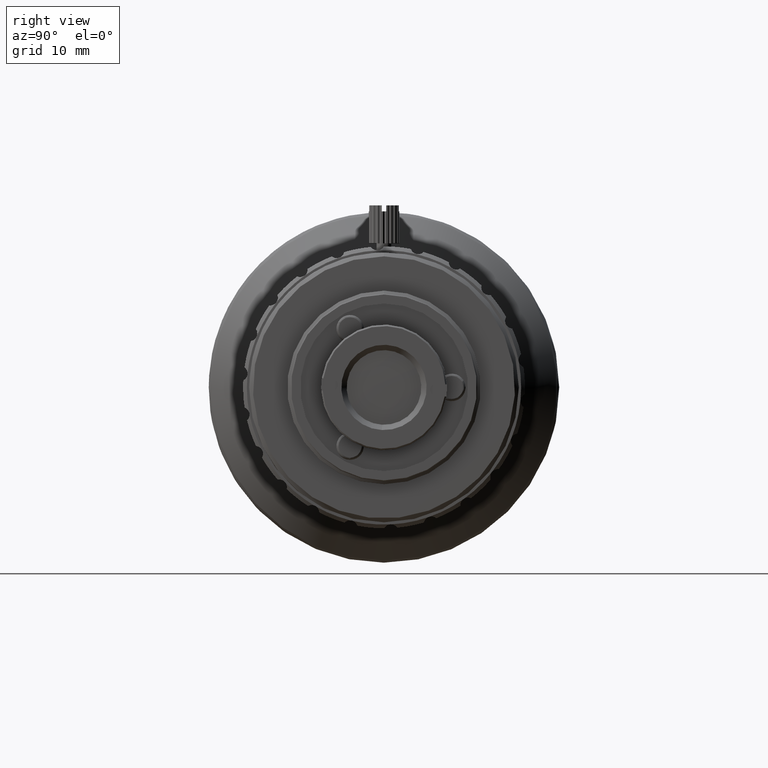
[diagram: clean part render]
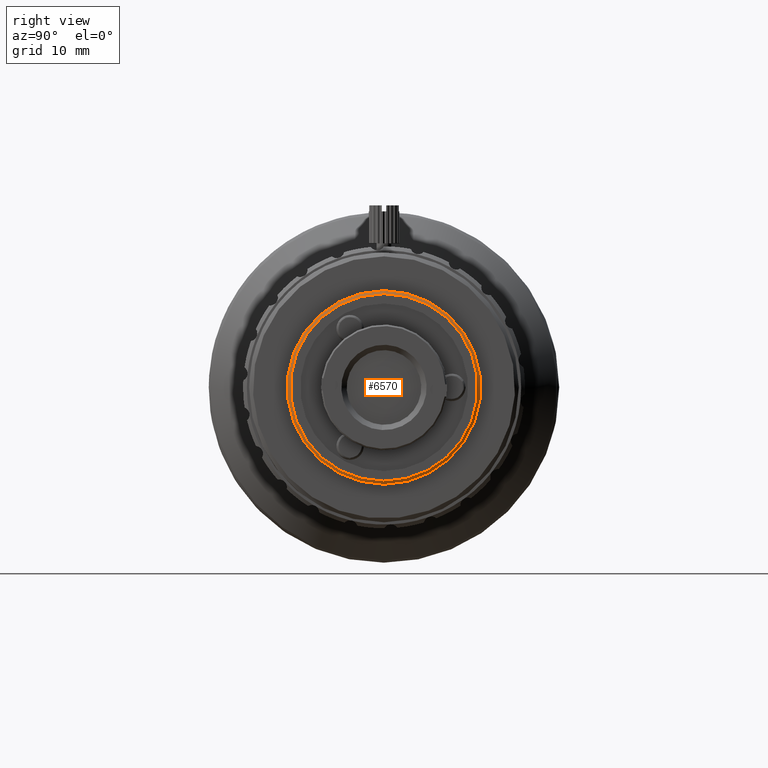
[diagram: same view with one face highlighted and labeled with its STEP entity id]
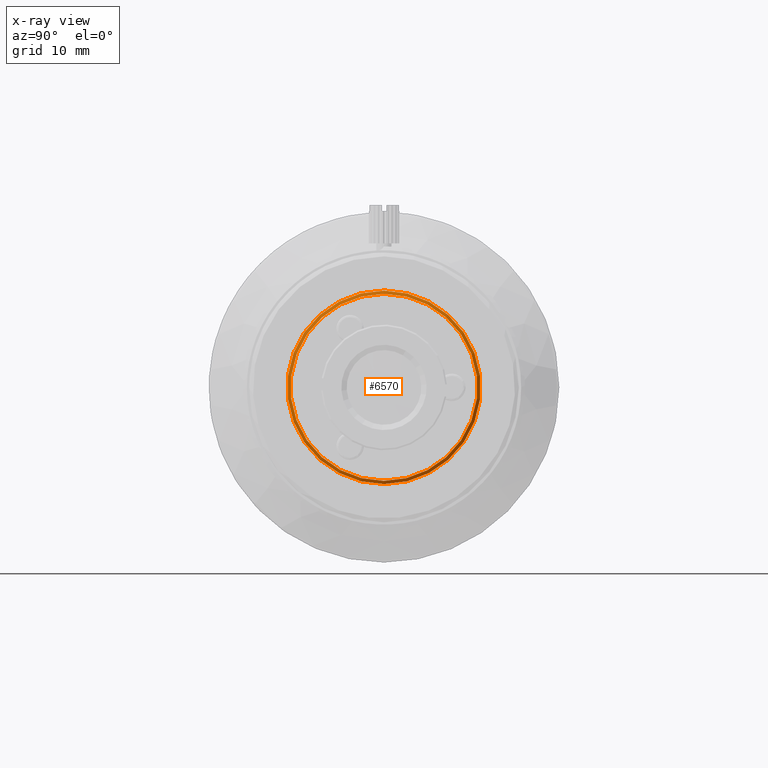
[diagram: x-ray of the same camera — body ghosted, the highlighted face saturated]
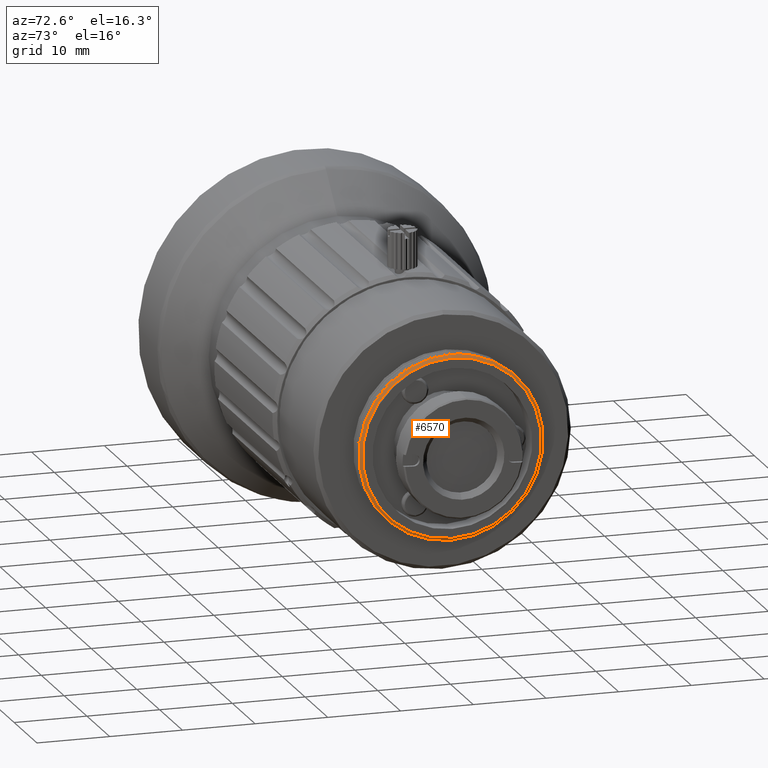
[diagram: same view with one face highlighted and labeled with its STEP entity id]
A machine part, right view. The second image highlights one B-rep face of the part: STEP entity #6570.
The next image is the same camera in x-ray: the body ghosted, the highlighted face saturated — about 0% of this face is hidden behind the body in this view.
A second angle (auxiliary view) of the same face is appended — the face is thin or edge-on in the first view.
In plain terms, the highlighted conical surface has half-angle 60 deg.
Its self-contained STEP definition (entity closure, byte-faithful):
#216 = DIRECTION ( 'NONE',  ( 0.000000000000000000, 0.000000000000000000, 1.000000000000000000 ) ) ;
#584 = DIRECTION ( 'NONE',  ( -1.000000000000000000, 0.000000000000000000, 0.000000000000000000 ) ) ;
#1240 = CARTESIAN_POINT ( 'NONE',  ( 24.12368414659907856, -1.808066145625021770, 80.94071780516576098 ) ) ;
#1366 = AXIS2_PLACEMENT_3D ( 'NONE', #13105, #6102, #216 ) ;
#1550 = DIRECTION ( 'NONE',  ( 1.000000000000000000, -0.000000000000000000, -0.000000000000000000 ) ) ;
#1711 = CARTESIAN_POINT ( 'NONE',  ( 24.12368414659907856, -1.808066145625021770, 68.24071780503437878 ) ) ;
#2703 = CIRCLE ( 'NONE', #11136, 12.27037487516190950 ) ;
#2765 = CARTESIAN_POINT ( 'NONE',  ( 24.37172832815084078, -1.808066145625021770, 68.24071780503437878 ) ) ;
#3312 = CONICAL_SURFACE ( 'NONE', #5721, 12.70000000013138397, 1.047197551196591858 ) ;
#3848 = EDGE_CURVE ( 'NONE', #13260, #13260, #2703, .T. ) ;
#4686 = DIRECTION ( 'NONE',  ( 0.000000000000000000, 0.000000000000000000, 1.000000000000000000 ) ) ;
#5721 = AXIS2_PLACEMENT_3D ( 'NONE', #1711, #584, #4686 ) ;
#6102 = DIRECTION ( 'NONE',  ( 1.000000000000000000, -0.000000000000000000, -0.000000000000000000 ) ) ;
#6570 = ADVANCED_FACE ( 'NONE', ( #13038, #8663 ), #3312, .T. ) ;
#8663 = FACE_OUTER_BOUND ( 'NONE', #12299, .T. ) ;
#8738 = EDGE_LOOP ( 'NONE', ( #9066 ) ) ;
#9066 = ORIENTED_EDGE ( 'NONE', *, *, #3848, .F. ) ;
#9641 = EDGE_CURVE ( 'NONE', #13844, #13844, #10282, .T. ) ;
#10282 = CIRCLE ( 'NONE', #1366, 12.70000000013138397 ) ;
#10592 = ORIENTED_EDGE ( 'NONE', *, *, #9641, .T. ) ;
#11136 = AXIS2_PLACEMENT_3D ( 'NONE', #2765, #1550, #12119 ) ;
#12119 = DIRECTION ( 'NONE',  ( 0.000000000000000000, 0.000000000000000000, -1.000000000000000000 ) ) ;
#12299 = EDGE_LOOP ( 'NONE', ( #10592 ) ) ;
#13038 = FACE_BOUND ( 'NONE', #8738, .T. ) ;
#13105 = CARTESIAN_POINT ( 'NONE',  ( 24.12368414659907856, -1.808066145625021770, 68.24071780503437878 ) ) ;
#13260 = VERTEX_POINT ( 'NONE', #14392 ) ;
#13844 = VERTEX_POINT ( 'NONE', #1240 ) ;
#14392 = CARTESIAN_POINT ( 'NONE',  ( 24.37172832815084078, -1.808066145625021770, 55.97034292987247284 ) ) ;